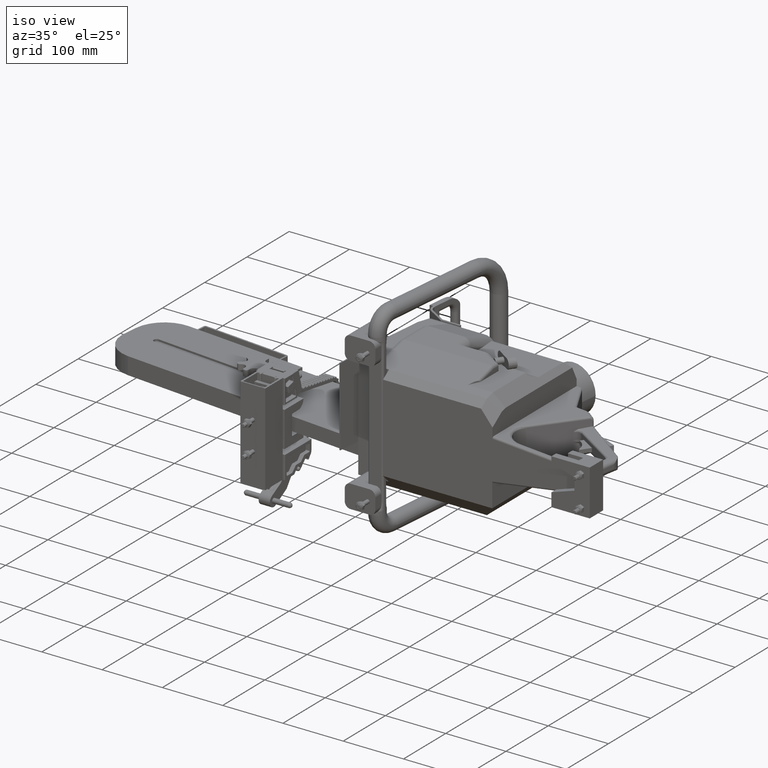
[diagram: clean part render]
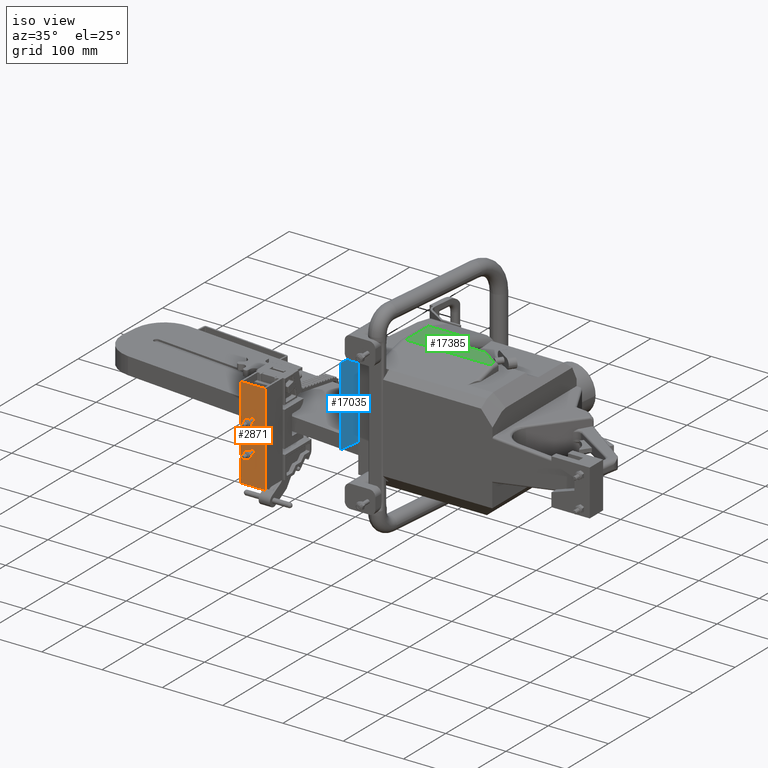
[diagram: same view with three faces highlighted in distinct colors, each labeled with its STEP entity id]
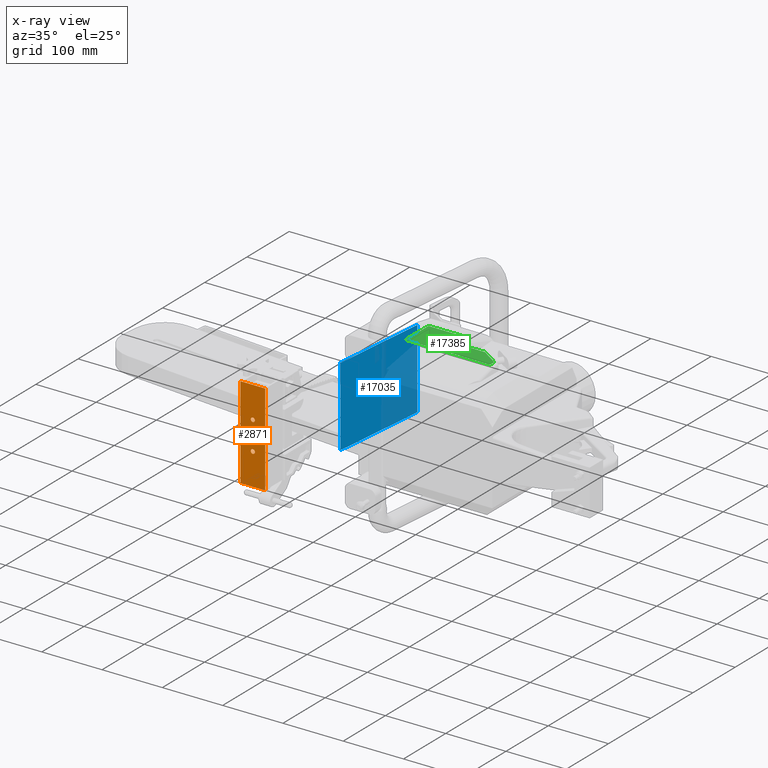
[diagram: x-ray of the same camera — body ghosted, the three highlighted faces saturated]
A machine part, iso view with three faces highlighted in distinct colors.
The next image is the same camera in x-ray (body ghosted, the three faces saturated) — at least one of them is partly hidden behind the body in this view.
Their STEP definitions:

[orange] entity #2871 — the highlighted planar face has unit normal (0, 1, 0).
#2871 = ADVANCED_FACE ( 'NONE', ( #45978, #45972, #45985 ), #52385, .F. ) ;
#11923 = AXIS2_PLACEMENT_3D ( 'NONE', #58262, #58269, #58271 ) ;
#11942 = AXIS2_PLACEMENT_3D ( 'NONE', #58567, #58599, #58601 ) ;
#11953 = AXIS2_PLACEMENT_3D ( 'NONE', #58686, #58687, #58688 ) ;
#11957 = AXIS2_PLACEMENT_3D ( 'NONE', #58683, #58689, #58690 ) ;
#12492 = VERTEX_POINT ( 'NONE', #52934 ) ;
#12494 = VERTEX_POINT ( 'NONE', #52936 ) ;
#12531 = VERTEX_POINT ( 'NONE', #52973 ) ;
#12537 = VERTEX_POINT ( 'NONE', #52979 ) ;
#12544 = VERTEX_POINT ( 'NONE', #52986 ) ;
#12570 = VERTEX_POINT ( 'NONE', #53012 ) ;
#12574 = VERTEX_POINT ( 'NONE', #53016 ) ;
#12576 = VERTEX_POINT ( 'NONE', #53018 ) ;
#16882 = EDGE_LOOP ( 'NONE', ( #21901, #21903, #21906, #21909 ) ) ;
#20875 = EDGE_LOOP ( 'NONE', ( #21890, #21893 ) ) ;
#20889 = EDGE_LOOP ( 'NONE', ( #21896, #21898 ) ) ;
#21890 = ORIENTED_EDGE ( 'NONE', *, *, #70981, .T. ) ;
#21893 = ORIENTED_EDGE ( 'NONE', *, *, #70953, .T. ) ;
#21896 = ORIENTED_EDGE ( 'NONE', *, *, #70980, .T. ) ;
#21898 = ORIENTED_EDGE ( 'NONE', *, *, #70897, .T. ) ;
#21901 = ORIENTED_EDGE ( 'NONE', *, *, #70982, .T. ) ;
#21903 = ORIENTED_EDGE ( 'NONE', *, *, #70908, .F. ) ;
#21906 = ORIENTED_EDGE ( 'NONE', *, *, #70983, .F. ) ;
#21909 = ORIENTED_EDGE ( 'NONE', *, *, #70979, .T. ) ;
#40403 = AXIS2_PLACEMENT_3D ( 'NONE', #52377, #52386, #52387 ) ;
#45049 = CIRCLE ( 'NONE', #11923, 0.1329999999999999200 ) ;
#45078 = LINE ( 'NONE', #58333, #45080 ) ;
#45080 = VECTOR ( 'NONE', #58335, 39.37007874015748100 ) ;
#45216 = CIRCLE ( 'NONE', #11942, 0.1329999999999999200 ) ;
#45286 = LINE ( 'NONE', #58684, #45288 ) ;
#45288 = VECTOR ( 'NONE', #58685, 39.37007874015748100 ) ;
#45292 = LINE ( 'NONE', #58691, #45293 ) ;
#45293 = VECTOR ( 'NONE', #58692, 39.37007874015748100 ) ;
#45294 = CIRCLE ( 'NONE', #11953, 0.1329999999999999200 ) ;
#45295 = CIRCLE ( 'NONE', #11957, 0.1329999999999999200 ) ;
#45296 = LINE ( 'NONE', #58693, #45297 ) ;
#45297 = VECTOR ( 'NONE', #58694, 39.37007874015748100 ) ;
#45972 = FACE_BOUND ( 'NONE', #20889, .T. ) ;
#45978 = FACE_BOUND ( 'NONE', #20875, .T. ) ;
#45985 = FACE_OUTER_BOUND ( 'NONE', #16882, .T. ) ;
#52377 = CARTESIAN_POINT ( 'NONE',  ( 0.0000000000000000000, 0.0000000000000000000, 3.000000000000000400 ) ) ;
#52385 = PLANE ( 'NONE',  #40403 ) ;
#52386 = DIRECTION ( 'NONE',  ( 0.0000000000000000000, 1.000000000000000000, 0.0000000000000000000 ) ) ;
#52387 = DIRECTION ( 'NONE',  ( 0.0000000000000000000, -0.0000000000000000000, 1.000000000000000000 ) ) ;
#52934 = CARTESIAN_POINT ( 'NONE',  ( -0.8125000000000000000, 0.0000000000000000000, 3.000000000000000400 ) ) ;
#52936 = CARTESIAN_POINT ( 'NONE',  ( -0.8125000000000000000, 0.0000000000000000000, -3.000000000000000400 ) ) ;
#52973 = CARTESIAN_POINT ( 'NONE',  ( -3.786143274801218600E-018, 0.0000000000000000000, 1.070500000000000000 ) ) ;
#52979 = CARTESIAN_POINT ( 'NONE',  ( 1.250165915385857800E-017, 0.0000000000000000000, -1.070500000000000000 ) ) ;
#52986 = CARTESIAN_POINT ( 'NONE',  ( 1.250165915385857800E-017, 0.0000000000000000000, 0.8045000000000001000 ) ) ;
#53012 = CARTESIAN_POINT ( 'NONE',  ( 0.8125000000000000000, 0.0000000000000000000, -3.000000000000000400 ) ) ;
#53016 = CARTESIAN_POINT ( 'NONE',  ( 0.8125000000000000000, 0.0000000000000000000, 3.000000000000000400 ) ) ;
#53018 = CARTESIAN_POINT ( 'NONE',  ( -3.786143274801218600E-018, 0.0000000000000000000, -0.8045000000000001000 ) ) ;
#58262 = CARTESIAN_POINT ( 'NONE',  ( -3.786143274801218600E-018, 0.0000000000000000000, -0.9375000000000000000 ) ) ;
#58269 = DIRECTION ( 'NONE',  ( 0.0000000000000000000, 1.000000000000000000, 0.0000000000000000000 ) ) ;
#58271 = DIRECTION ( 'NONE',  ( 0.0000000000000000000, 0.0000000000000000000, 1.000000000000000000 ) ) ;
#58333 = CARTESIAN_POINT ( 'NONE',  ( 0.8125000000000000000, 0.0000000000000000000, 3.000000000000000400 ) ) ;
#58335 = DIRECTION ( 'NONE',  ( -0.0000000000000000000, -0.0000000000000000000, -1.000000000000000000 ) ) ;
#58567 = CARTESIAN_POINT ( 'NONE',  ( -3.786143274801218600E-018, 0.0000000000000000000, 0.9375000000000000000 ) ) ;
#58599 = DIRECTION ( 'NONE',  ( 0.0000000000000000000, 1.000000000000000000, 0.0000000000000000000 ) ) ;
#58601 = DIRECTION ( 'NONE',  ( 0.0000000000000000000, 0.0000000000000000000, 1.000000000000000000 ) ) ;
#58683 = CARTESIAN_POINT ( 'NONE',  ( -3.786143274801218600E-018, 0.0000000000000000000, 0.9375000000000000000 ) ) ;
#58684 = CARTESIAN_POINT ( 'NONE',  ( -0.8125000000000000000, 0.0000000000000000000, 3.000000000000000400 ) ) ;
#58685 = DIRECTION ( 'NONE',  ( -0.0000000000000000000, -0.0000000000000000000, -1.000000000000000000 ) ) ;
#58686 = CARTESIAN_POINT ( 'NONE',  ( -3.786143274801218600E-018, 0.0000000000000000000, -0.9375000000000000000 ) ) ;
#58687 = DIRECTION ( 'NONE',  ( 0.0000000000000000000, 1.000000000000000000, 0.0000000000000000000 ) ) ;
#58688 = DIRECTION ( 'NONE',  ( 0.0000000000000000000, 0.0000000000000000000, 1.000000000000000000 ) ) ;
#58689 = DIRECTION ( 'NONE',  ( 0.0000000000000000000, 1.000000000000000000, 0.0000000000000000000 ) ) ;
#58690 = DIRECTION ( 'NONE',  ( 0.0000000000000000000, 0.0000000000000000000, 1.000000000000000000 ) ) ;
#58691 = CARTESIAN_POINT ( 'NONE',  ( 0.0000000000000000000, 0.0000000000000000000, -3.000000000000000400 ) ) ;
#58692 = DIRECTION ( 'NONE',  ( 1.000000000000000000, 0.0000000000000000000, 0.0000000000000000000 ) ) ;
#58693 = CARTESIAN_POINT ( 'NONE',  ( 0.0000000000000000000, 0.0000000000000000000, 3.000000000000000400 ) ) ;
#58694 = DIRECTION ( 'NONE',  ( 1.000000000000000000, 0.0000000000000000000, 0.0000000000000000000 ) ) ;
#70897 = EDGE_CURVE ( 'NONE', #12537, #12576, #45049, .T. ) ;
#70908 = EDGE_CURVE ( 'NONE', #12574, #12570, #45078, .T. ) ;
#70953 = EDGE_CURVE ( 'NONE', #12544, #12531, #45216, .T. ) ;
#70979 = EDGE_CURVE ( 'NONE', #12492, #12494, #45286, .T. ) ;
#70980 = EDGE_CURVE ( 'NONE', #12576, #12537, #45294, .T. ) ;
#70981 = EDGE_CURVE ( 'NONE', #12531, #12544, #45295, .T. ) ;
#70982 = EDGE_CURVE ( 'NONE', #12494, #12570, #45292, .T. ) ;
#70983 = EDGE_CURVE ( 'NONE', #12492, #12574, #45296, .T. ) ;

[blue] entity #17035 — the highlighted planar face has unit normal (-0.9953, 0.0969, 0).
#4948 = VECTOR ( 'NONE', #6042, 39.37007874015748900 ) ;
#4949 = LINE ( 'NONE', #6027, #4950 ) ;
#4950 = VECTOR ( 'NONE', #6028, 39.37007874015748100 ) ;
#4953 = LINE ( 'NONE', #6041, #4948 ) ;
#4966 = LINE ( 'NONE', #6051, #4967 ) ;
#4967 = VECTOR ( 'NONE', #6052, 39.37007874015748100 ) ;
#4971 = LINE ( 'NONE', #6058, #4972 ) ;
#4972 = VECTOR ( 'NONE', #6059, 39.37007874015748900 ) ;
#6027 = CARTESIAN_POINT ( 'NONE',  ( 6.048448899274440300, 6.713017471751287600, 0.4375000000000000000 ) ) ;
#6028 = DIRECTION ( 'NONE',  ( -0.0000000000000000000, -0.0000000000000000000, -1.000000000000000000 ) ) ;
#6041 = CARTESIAN_POINT ( 'NONE',  ( 6.048448899274440300, 6.713017471751287600, 5.591811810101114900 ) ) ;
#6042 = DIRECTION ( 'NONE',  ( 0.09688716013922985000, 0.9952953723393649400, -1.722766118140243400E-016 ) ) ;
#6051 = CARTESIAN_POINT ( 'NONE',  ( 5.433900026386433900, 0.3999245048108319700, 0.4375000000000000000 ) ) ;
#6052 = DIRECTION ( 'NONE',  ( 0.0000000000000000000, 0.0000000000000000000, 1.000000000000000000 ) ) ;
#6058 = CARTESIAN_POINT ( 'NONE',  ( 6.048448899274440300, 6.713017471751287600, 0.4375000000000000000 ) ) ;
#6059 = DIRECTION ( 'NONE',  ( -0.09688716013922985000, -0.9952953723393649400, 0.0000000000000000000 ) ) ;
#12335 = VERTEX_POINT ( 'NONE', #52777 ) ;
#12336 = VERTEX_POINT ( 'NONE', #52778 ) ;
#12337 = VERTEX_POINT ( 'NONE', #52779 ) ;
#13359 = EDGE_LOOP ( 'NONE', ( #22100, #22101, #22102, #22103 ) ) ;
#17035 = ADVANCED_FACE ( 'NONE', ( #46390 ), #53650, .F. ) ;
#20641 = EDGE_CURVE ( 'NONE', #67330, #12337, #4949, .T. ) ;
#20646 = EDGE_CURVE ( 'NONE', #12336, #67330, #4953, .T. ) ;
#20651 = EDGE_CURVE ( 'NONE', #12335, #12336, #4966, .T. ) ;
#20654 = EDGE_CURVE ( 'NONE', #12337, #12335, #4971, .T. ) ;
#22100 = ORIENTED_EDGE ( 'NONE', *, *, #20654, .F. ) ;
#22101 = ORIENTED_EDGE ( 'NONE', *, *, #20641, .F. ) ;
#22102 = ORIENTED_EDGE ( 'NONE', *, *, #20646, .F. ) ;
#22103 = ORIENTED_EDGE ( 'NONE', *, *, #20651, .F. ) ;
#40525 = AXIS2_PLACEMENT_3D ( 'NONE', #53645, #53655, #53656 ) ;
#46390 = FACE_OUTER_BOUND ( 'NONE', #13359, .T. ) ;
#52777 = CARTESIAN_POINT ( 'NONE',  ( 5.433900026386433900, 0.3999245048108319700, 0.4375000000000000000 ) ) ;
#52778 = CARTESIAN_POINT ( 'NONE',  ( 5.433900026386433900, 0.3999245048108319700, 5.591811810101115800 ) ) ;
#52779 = CARTESIAN_POINT ( 'NONE',  ( 6.048448899274440300, 6.713017471751287600, 0.4375000000000000000 ) ) ;
#53645 = CARTESIAN_POINT ( 'NONE',  ( 5.433900026386433900, 0.3999245048108319700, 0.4375000000000000000 ) ) ;
#53650 = PLANE ( 'NONE',  #40525 ) ;
#53655 = DIRECTION ( 'NONE',  ( -0.9952953723393650500, 0.09688716013922986400, 0.0000000000000000000 ) ) ;
#53656 = DIRECTION ( 'NONE',  ( -0.09688716013922985000, -0.9952953723393649400, 0.0000000000000000000 ) ) ;
#58080 = CARTESIAN_POINT ( 'NONE',  ( 6.048448899274440300, 6.713017471751287600, 5.591811810101114900 ) ) ;
#67330 = VERTEX_POINT ( 'NONE', #58080 ) ;

[green] entity #17385 — the highlighted planar face has unit normal (0, 0, -1).
#3616 = CARTESIAN_POINT ( 'NONE',  ( 10.37412009980632500, 4.595867820907798800, 6.371055521449708400 ) ) ;
#3621 = DIRECTION ( 'NONE',  ( 1.000000000000000000, 1.240801155314842500E-016, -0.0000000000000000000 ) ) ;
#3902 = CARTESIAN_POINT ( 'NONE',  ( -12.35847060929642700, 5.573085704679927600, 6.371055521449708400 ) ) ;
#3912 = DIRECTION ( 'NONE',  ( 1.000000000000000000, 1.240801155314842800E-016, -0.0000000000000000000 ) ) ;
#4203 = VECTOR ( 'NONE', #3621, 39.37007874015748100 ) ;
#4206 = LINE ( 'NONE', #3616, #4203 ) ;
#4323 = LINE ( 'NONE', #3902, #4324 ) ;
#4324 = VECTOR ( 'NONE', #3912, 39.37007874015748100 ) ;
#5037 = LINE ( 'NONE', #6344, #5072 ) ;
#5060 = LINE ( 'NONE', #6329, #5061 ) ;
#5061 = VECTOR ( 'NONE', #6330, 39.37007874015748900 ) ;
#5071 = LINE ( 'NONE', #6351, #5075 ) ;
#5072 = VECTOR ( 'NONE', #6345, 39.37007874015748100 ) ;
#5075 = VECTOR ( 'NONE', #6352, 39.37007874015748100 ) ;
#5076 = LINE ( 'NONE', #6353, #5077 ) ;
#5077 = VECTOR ( 'NONE', #6354, 39.37007874015748100 ) ;
#5078 = LINE ( 'NONE', #6355, #5079 ) ;
#5079 = VECTOR ( 'NONE', #6356, 39.37007874015748100 ) ;
#6329 = CARTESIAN_POINT ( 'NONE',  ( -4.332924794200653900, 15.46303900352721300, 6.371055521449708400 ) ) ;
#6330 = DIRECTION ( 'NONE',  ( -0.8317585709470692900, 0.5551375321990839100, -0.0000000000000000000 ) ) ;
#6344 = CARTESIAN_POINT ( 'NONE',  ( 9.874120099806326300, 5.573085704679929400, 6.371055521449708400 ) ) ;
#6345 = DIRECTION ( 'NONE',  ( -0.0000000000000000000, 1.000000000000000000, -0.0000000000000000000 ) ) ;
#6351 = CARTESIAN_POINT ( 'NONE',  ( 13.08648186082751300, 3.438421442918134100, 6.371055521449708400 ) ) ;
#6352 = DIRECTION ( 'NONE',  ( -0.0000000000000000000, 1.000000000000000000, -0.0000000000000000000 ) ) ;
#6353 = CARTESIAN_POINT ( 'NONE',  ( -12.35847060929642700, 3.438421442918134100, 6.371055521449708400 ) ) ;
#6354 = DIRECTION ( 'NONE',  ( 1.000000000000000000, 1.240801155314842800E-016, -0.0000000000000000000 ) ) ;
#6355 = CARTESIAN_POINT ( 'NONE',  ( 7.566382456992774200, 3.438421442918134100, 6.371055521449708400 ) ) ;
#6356 = DIRECTION ( 'NONE',  ( -0.0000000000000000000, -1.000000000000000000, -0.0000000000000000000 ) ) ;
#12685 = VERTEX_POINT ( 'NONE', #53127 ) ;
#12686 = VERTEX_POINT ( 'NONE', #53128 ) ;
#12752 = VERTEX_POINT ( 'NONE', #53194 ) ;
#12757 = VERTEX_POINT ( 'NONE', #53199 ) ;
#13049 = EDGE_LOOP ( 'NONE', ( #26477, #26479, #26481, #26483, #26486, #26488, #26490 ) ) ;
#17385 = ADVANCED_FACE ( 'NONE', ( #46828 ), #54698, .F. ) ;
#19985 = EDGE_CURVE ( 'NONE', #12685, #12686, #4206, .T. ) ;
#20136 = EDGE_CURVE ( 'NONE', #12757, #12752, #4323, .T. ) ;
#20726 = EDGE_CURVE ( 'NONE', #23796, #12686, #5060, .T. ) ;
#20733 = EDGE_CURVE ( 'NONE', #12685, #12752, #5037, .T. ) ;
#20735 = EDGE_CURVE ( 'NONE', #23795, #23796, #5071, .T. ) ;
#20736 = EDGE_CURVE ( 'NONE', #23794, #23795, #5076, .T. ) ;
#20737 = EDGE_CURVE ( 'NONE', #12757, #23794, #5078, .T. ) ;
#23794 = VERTEX_POINT ( 'NONE', #25477 ) ;
#23795 = VERTEX_POINT ( 'NONE', #25478 ) ;
#23796 = VERTEX_POINT ( 'NONE', #25479 ) ;
#25477 = CARTESIAN_POINT ( 'NONE',  ( 7.566382456992774200, 3.438421442918136800, 6.371055521449708400 ) ) ;
#25478 = CARTESIAN_POINT ( 'NONE',  ( 13.08648186082751300, 3.438421442918137200, 6.371055521449708400 ) ) ;
#25479 = CARTESIAN_POINT ( 'NONE',  ( 13.08648186082751200, 3.836869150135926000, 6.371055521449708400 ) ) ;
#26477 = ORIENTED_EDGE ( 'NONE', *, *, #20736, .T. ) ;
#26479 = ORIENTED_EDGE ( 'NONE', *, *, #20735, .T. ) ;
#26481 = ORIENTED_EDGE ( 'NONE', *, *, #20726, .T. ) ;
#26483 = ORIENTED_EDGE ( 'NONE', *, *, #19985, .F. ) ;
#26486 = ORIENTED_EDGE ( 'NONE', *, *, #20733, .T. ) ;
#26488 = ORIENTED_EDGE ( 'NONE', *, *, #20136, .F. ) ;
#26490 = ORIENTED_EDGE ( 'NONE', *, *, #20737, .T. ) ;
#40645 = AXIS2_PLACEMENT_3D ( 'NONE', #54687, #54710, #54712 ) ;
#46828 = FACE_OUTER_BOUND ( 'NONE', #13049, .T. ) ;
#53127 = CARTESIAN_POINT ( 'NONE',  ( 9.874120099806326300, 4.595867820907798800, 6.371055521449708400 ) ) ;
#53128 = CARTESIAN_POINT ( 'NONE',  ( 11.94927961249251800, 4.595867820907798800, 6.371055521449708400 ) ) ;
#53194 = CARTESIAN_POINT ( 'NONE',  ( 9.874120099806326300, 5.573085704679931100, 6.371055521449708400 ) ) ;
#53199 = CARTESIAN_POINT ( 'NONE',  ( 7.566382456992774200, 5.573085704679929400, 6.371055521449708400 ) ) ;
#54687 = CARTESIAN_POINT ( 'NONE',  ( -12.35847060929642700, 3.438421442918134100, 6.371055521449708400 ) ) ;
#54698 = PLANE ( 'NONE',  #40645 ) ;
#54710 = DIRECTION ( 'NONE',  ( 0.0000000000000000000, 0.0000000000000000000, -1.000000000000000000 ) ) ;
#54712 = DIRECTION ( 'NONE',  ( -1.000000000000000000, 0.0000000000000000000, 0.0000000000000000000 ) ) ;